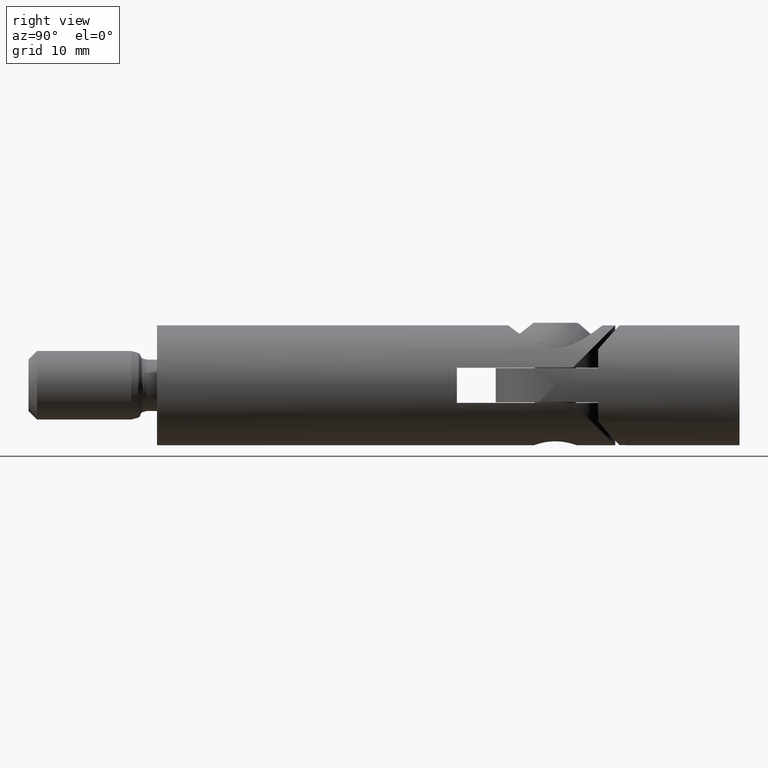
[diagram: clean part render]
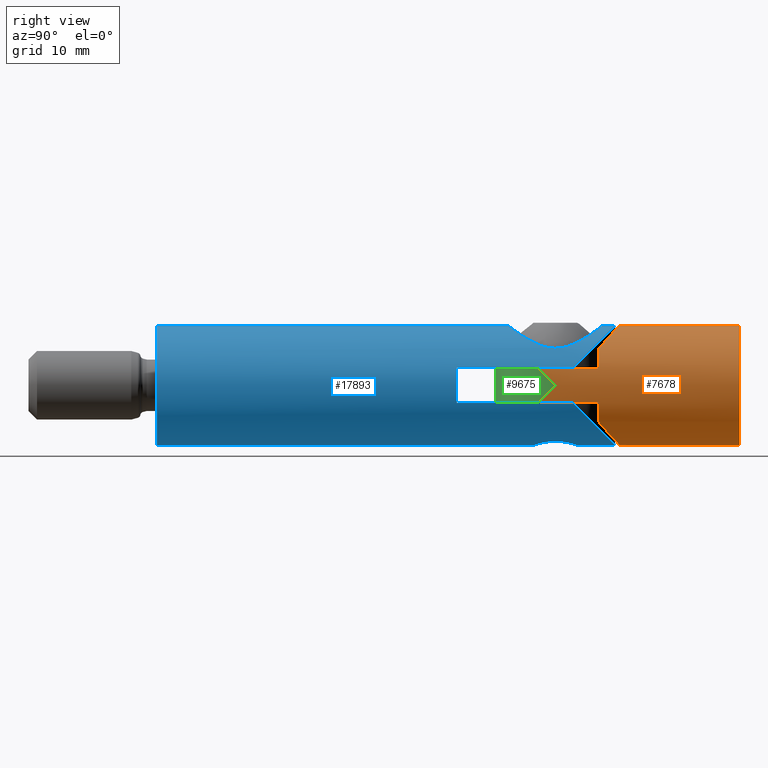
[diagram: same view with three faces highlighted in distinct colors, each labeled with its STEP entity id]
A machine part, right view with three faces highlighted in distinct colors.
Their STEP definitions:

[orange] entity #7678 — the highlighted cylindrical surface (bore or boss wall) has radius 7 mm, axis along (-0, -1, -0).
#22 = CARTESIAN_POINT ( 'NONE',  ( 7.000000000000000000, 7.000000000000000000, 0.000000000000000000 ) ) ;
#253 = AXIS2_PLACEMENT_3D ( 'NONE', #15534, #2525, #13931 ) ;
#283 = EDGE_LOOP ( 'NONE', ( #9877 ) ) ;
#326 = LINE ( 'NONE', #14400, #12409 ) ;
#373 = ORIENTED_EDGE ( 'NONE', *, *, #15923, .F. ) ;
#419 = CARTESIAN_POINT ( 'NONE',  ( -6.708203932499366751, 4.999999999999994671, -2.000000000000000000 ) ) ;
#493 = ORIENTED_EDGE ( 'NONE', *, *, #18924, .F. ) ;
#647 = ORIENTED_EDGE ( 'NONE', *, *, #13480, .F. ) ;
#702 = ORIENTED_EDGE ( 'NONE', *, *, #2052, .F. ) ;
#987 =( BOUNDED_CURVE ( )  B_SPLINE_CURVE ( 3, ( #15938, #18853, #16119, #22 ),
 .UNSPECIFIED., .F., .F. ) 
 B_SPLINE_CURVE_WITH_KNOTS ( ( 4, 4 ),
 ( 1.281044625358848776, 1.570796326794896558 ),
 .UNSPECIFIED. ) 
 CURVE ( )  GEOMETRIC_REPRESENTATION_ITEM ( )  RATIONAL_B_SPLINE_CURVE ( ( 1.000000000000000000, 0.9930158912520659076, 0.9930158912520659076, 1.000000000000000000 ) ) 
 REPRESENTATION_ITEM ( '' )  );
#1037 = EDGE_CURVE ( 'NONE', #11299, #14825, #3824, .T. ) ;
#1078 = ORIENTED_EDGE ( 'NONE', *, *, #17676, .F. ) ;
#1079 = CARTESIAN_POINT ( 'NONE',  ( 0.000000000000000000, 28.50000000000000000, 0.000000000000000000 ) ) ;
#1106 = CARTESIAN_POINT ( 'NONE',  ( -6.902050554587900066, 5.650181336297994683, 1.349818663702006205 ) ) ;
#1224 = CARTESIAN_POINT ( 'NONE',  ( 3.524545003834539170, 13.62551116651950167, 6.053919697269575018 ) ) ;
#1431 = CYLINDRICAL_SURFACE ( 'NONE', #1875, 7.000000000000000888 ) ;
#1580 = CARTESIAN_POINT ( 'NONE',  ( 0.000000000000000000, 12.00000000000002132, 0.000000000000000000 ) ) ;
#1831 =( BOUNDED_CURVE ( )  B_SPLINE_CURVE ( 3, ( #2173, #7916, #3634, #10694 ),
 .UNSPECIFIED., .F., .F. ) 
 B_SPLINE_CURVE_WITH_KNOTS ( ( 4, 4 ),
 ( 4.712388980384689674, 5.002140681820737456 ),
 .UNSPECIFIED. ) 
 CURVE ( )  GEOMETRIC_REPRESENTATION_ITEM ( )  RATIONAL_B_SPLINE_CURVE ( ( 1.000000000000000000, 0.9930158912520659076, 0.9930158912520659076, 1.000000000000000000 ) ) 
 REPRESENTATION_ITEM ( '' )  );
#1875 = AXIS2_PLACEMENT_3D ( 'NONE', #1079, #5342, #2466 ) ;
#2052 = EDGE_CURVE ( 'NONE', #6857, #18804, #6511, .T. ) ;
#2173 = CARTESIAN_POINT ( 'NONE',  ( -7.000000000000000000, 7.000000000000000000, 0.000000000000000000 ) ) ;
#2289 = DIRECTION ( 'NONE',  ( -0.000000000000000000, -1.000000000000000000, -0.000000000000000000 ) ) ;
#2466 = DIRECTION ( 'NONE',  ( 0.000000000000000000, 0.000000000000000000, -1.000000000000000000 ) ) ;
#2478 = CARTESIAN_POINT ( 'NONE',  ( 5.295299452756755620, 12.32967523120923481, 4.604327404148115477 ) ) ;
#2525 = DIRECTION ( 'NONE',  ( -1.230448640448439967E-15, 1.000000000000000000, 0.000000000000000000 ) ) ;
#2584 = CARTESIAN_POINT ( 'NONE',  ( -2.281761982262518362, 14.16768436919888607, -6.642925010495680738 ) ) ;
#2663 = CARTESIAN_POINT ( 'NONE',  ( 2.283189748070490133, 14.14933601639830485, 6.623027506322753943 ) ) ;
#2722 = CARTESIAN_POINT ( 'NONE',  ( 3.752786704336832813, 13.49857862728381797, 5.914853299431412914 ) ) ;
#2768 = DIRECTION ( 'NONE',  ( 0.000000000000000000, 1.000000000000000000, 0.000000000000000000 ) ) ;
#2842 = CARTESIAN_POINT ( 'NONE',  ( 5.295299452756753844, 12.32967523120923481, -4.604327404148115477 ) ) ;
#3002 = VECTOR ( 'NONE', #2289, 1000.000000000000000 ) ;
#3161 = ORIENTED_EDGE ( 'NONE', *, *, #18053, .F. ) ;
#3196 = DIRECTION ( 'NONE',  ( 2.460897280896876779E-15, 1.000000000000000000, -0.000000000000000000 ) ) ;
#3241 =( BOUNDED_CURVE ( )  B_SPLINE_CURVE ( 3, ( #8660, #18861, #4354, #17460 ),
 .UNSPECIFIED., .F., .F. ) 
 B_SPLINE_CURVE_WITH_KNOTS ( ( 4, 4 ),
 ( 4.712388980384689674, 5.002140681820737456 ),
 .UNSPECIFIED. ) 
 CURVE ( )  GEOMETRIC_REPRESENTATION_ITEM ( )  RATIONAL_B_SPLINE_CURVE ( ( 1.000000000000000000, 0.9930158912520659076, 0.9930158912520659076, 1.000000000000000000 ) ) 
 REPRESENTATION_ITEM ( '' )  );
#3511 = CARTESIAN_POINT ( 'NONE',  ( 6.708203932499368527, 12.00000000000000178, -2.000000000000000000 ) ) ;
#3634 = CARTESIAN_POINT ( 'NONE',  ( -6.902050554587899178, 5.650181336297996459, -1.349818663702003985 ) ) ;
#3671 = ORIENTED_EDGE ( 'NONE', *, *, #17442, .F. ) ;
#3795 = AXIS2_PLACEMENT_3D ( 'NONE', #13381, #4551, #16209 ) ;
#3824 = LINE ( 'NONE', #11087, #15900 ) ;
#3994 = CARTESIAN_POINT ( 'NONE',  ( -6.708203932499368527, 28.50000000000000000, 2.000000000000000000 ) ) ;
#4004 = CARTESIAN_POINT ( 'NONE',  ( -2.281761982262519250, 14.16768436919888430, 6.642925010495681626 ) ) ;
#4129 = CARTESIAN_POINT ( 'NONE',  ( -4.954200206329015366, 12.65149546179816831, 4.971094034197842682 ) ) ;
#4153 = VERTEX_POINT ( 'NONE', #3511 ) ;
#4177 = EDGE_CURVE ( 'NONE', #10074, #11299, #1831, .T. ) ;
#4187 = CARTESIAN_POINT ( 'NONE',  ( 5.590169943749471848, 12.00000000000000711, -4.213074886588183965 ) ) ;
#4201 = CARTESIAN_POINT ( 'NONE',  ( 1.178839073344445376, 14.42863304129473612, 6.923678008414044349 ) ) ;
#4354 = CARTESIAN_POINT ( 'NONE',  ( 6.902050554587899178, 5.650181336297996459, 1.349818663702003985 ) ) ;
#4406 = ORIENTED_EDGE ( 'NONE', *, *, #15896, .T. ) ;
#4551 = DIRECTION ( 'NONE',  ( -2.460897280896876779E-15, -1.000000000000000000, -0.000000000000000000 ) ) ;
#5090 = CARTESIAN_POINT ( 'NONE',  ( -6.708203932499366751, 4.999999999999994671, 2.000000000000000000 ) ) ;
#5342 = DIRECTION ( 'NONE',  ( -0.000000000000000000, -1.000000000000000000, -0.000000000000000000 ) ) ;
#5394 = CARTESIAN_POINT ( 'NONE',  ( 6.708203932499366751, 4.999999999999994671, -2.000000000000000000 ) ) ;
#5434 = DIRECTION ( 'NONE',  ( 0.000000000000000000, 1.000000000000000000, 0.000000000000000000 ) ) ;
#5463 = CARTESIAN_POINT ( 'NONE',  ( -3.761837097061687896, 13.51037000091867490, 5.928347600476352675 ) ) ;
#5520 = CARTESIAN_POINT ( 'NONE',  ( 4.960399619251063541, 12.64594433222658232, -4.964783192321641891 ) ) ;
#5596 = VERTEX_POINT ( 'NONE', #5090 ) ;
#5597 = CARTESIAN_POINT ( 'NONE',  ( 0.6045416079581605873, 14.49914639711959730, 6.999085425348580358 ) ) ;
#5645 = CARTESIAN_POINT ( 'NONE',  ( 4.185211454480367799, 13.22887929763642312, -5.617197048646974444 ) ) ;
#5657 = CARTESIAN_POINT ( 'NONE',  ( -1.159885179606266137, 14.43214661657628106, 6.927449516878300351 ) ) ;
#5731 = CARTESIAN_POINT ( 'NONE',  ( -6.708203932499366751, 4.999999999999994671, 2.000000000000000000 ) ) ;
#5774 = CARTESIAN_POINT ( 'NONE',  ( -5.590169943749473624, 12.00000000000000355, -4.213074886588180412 ) ) ;
#6399 = VERTEX_POINT ( 'NONE', #9830 ) ;
#6511 = B_SPLINE_CURVE_WITH_KNOTS ( 'NONE', 3,
 ( #6988, #2478, #12690, #9966, #7046, #2722, #1224, #11355, #8325, #2663, #18521, #4201, #5597, #14373, #5657, #4004, #6807, #5463, #12821, #4129, #16989, #12644 ),
 .UNSPECIFIED., .F., .F.,
 ( 4, 2, 2, 2, 2, 2, 2, 2, 2, 2, 4 ),
 ( 2.124593680485184732E-18, 0.001751070429422219759, 0.002626605644133327578, 0.003502140858844435614, 0.004377676073555543217, 0.005253211288266650819, 0.007004281717688866024, 0.008755352147111081229, 0.01050642257653329643, 0.01225749300595551337, 0.01400856343537772684 ),
 .UNSPECIFIED. ) ;
#6588 = CARTESIAN_POINT ( 'NONE',  ( -6.708203932499368527, 12.00000000000000178, -2.000000000000000000 ) ) ;
#6721 = CARTESIAN_POINT ( 'NONE',  ( -5.590169943749473624, 12.00000000000000000, 4.213074886588181300 ) ) ;
#6722 = CIRCLE ( 'NONE', #16519, 7.000000000000000888 ) ;
#6807 = CARTESIAN_POINT ( 'NONE',  ( -2.799444746878172463, 13.97849876426639426, 6.438931023553478461 ) ) ;
#6857 = VERTEX_POINT ( 'NONE', #17329 ) ;
#6860 = ORIENTED_EDGE ( 'NONE', *, *, #7725, .T. ) ;
#6974 = CARTESIAN_POINT ( 'NONE',  ( 2.801770636150686222, 13.96247385657338924, -6.420866769962272791 ) ) ;
#6988 = CARTESIAN_POINT ( 'NONE',  ( 5.590169943749471848, 12.00000000000000533, 4.213074886588183077 ) ) ;
#7033 = CARTESIAN_POINT ( 'NONE',  ( -0.5831730471351823653, 14.50083838235963540, -7.000898266949366011 ) ) ;
#7046 = CARTESIAN_POINT ( 'NONE',  ( 4.185211454480367799, 13.22887929763642312, 5.617197048646974444 ) ) ;
#7092 = DIRECTION ( 'NONE',  ( 0.000000000000000000, 0.000000000000000000, 1.000000000000000000 ) ) ;
#7095 = CARTESIAN_POINT ( 'NONE',  ( -2.799444746878171575, 13.97849876426639071, -6.438931023553478461 ) ) ;
#7154 = CARTESIAN_POINT ( 'NONE',  ( 2.283189748070490133, 14.14933601639830485, -6.623027506322753943 ) ) ;
#7220 = CARTESIAN_POINT ( 'NONE',  ( 0.6045416079581608093, 14.49914639711959552, -6.999085425348581246 ) ) ;
#7330 = CIRCLE ( 'NONE', #253, 7.000000000000000888 ) ;
#7352 = DIRECTION ( 'NONE',  ( 0.000000000000000000, 1.000000000000000000, 0.000000000000000000 ) ) ;
#7462 = DIRECTION ( 'NONE',  ( -1.000000000000000000, 2.478176394252581338E-15, 0.000000000000000000 ) ) ;
#7647 = VERTEX_POINT ( 'NONE', #9594 ) ;
#7678 = ADVANCED_FACE ( 'NONE', ( #10333, #15383 ), #1431, .T. ) ;
#7725 = EDGE_CURVE ( 'NONE', #13664, #12255, #11136, .T. ) ;
#7808 = AXIS2_PLACEMENT_3D ( 'NONE', #1580, #3196, #7462 ) ;
#7916 = CARTESIAN_POINT ( 'NONE',  ( -7.000000000000000888, 6.321536822690148938, -0.6784631773098522833 ) ) ;
#8325 = CARTESIAN_POINT ( 'NONE',  ( 2.801770636150687999, 13.96247385657338924, 6.420866769962271903 ) ) ;
#8364 = DIRECTION ( 'NONE',  ( 1.230448640448439967E-15, -1.000000000000000000, 0.000000000000000000 ) ) ;
#8433 = CIRCLE ( 'NONE', #12185, 7.000000000000000888 ) ;
#8660 = CARTESIAN_POINT ( 'NONE',  ( 7.000000000000000000, 7.000000000000000000, 0.000000000000000000 ) ) ;
#9138 = EDGE_CURVE ( 'NONE', #4153, #13454, #326, .T. ) ;
#9594 = CARTESIAN_POINT ( 'NONE',  ( -6.708203932499368527, 12.00000000000000178, 2.000000000000000000 ) ) ;
#9625 = ORIENTED_EDGE ( 'NONE', *, *, #11130, .F. ) ;
#9830 = CARTESIAN_POINT ( 'NONE',  ( 6.708203932499368527, 12.00000000000000178, 2.000000000000000000 ) ) ;
#9877 = ORIENTED_EDGE ( 'NONE', *, *, #10556, .F. ) ;
#9945 = CARTESIAN_POINT ( 'NONE',  ( 6.708203932499368527, 28.50000000000000000, 2.000000000000000000 ) ) ;
#9966 = CARTESIAN_POINT ( 'NONE',  ( 4.387857517918072325, 13.08726287823737522, 5.459886952566534113 ) ) ;
#10074 = VERTEX_POINT ( 'NONE', #17448 ) ;
#10333 = FACE_OUTER_BOUND ( 'NONE', #283, .T. ) ;
#10556 = EDGE_CURVE ( 'NONE', #11341, #11341, #6722, .T. ) ;
#10694 = CARTESIAN_POINT ( 'NONE',  ( -6.708203932499366751, 4.999999999999994671, -2.000000000000000000 ) ) ;
#11087 = CARTESIAN_POINT ( 'NONE',  ( -6.708203932499368527, 28.50000000000000000, -2.000000000000000000 ) ) ;
#11102 = CARTESIAN_POINT ( 'NONE',  ( 6.708203932499366751, 4.999999999999994671, 2.000000000000000000 ) ) ;
#11130 = EDGE_CURVE ( 'NONE', #13454, #14798, #987, .T. ) ;
#11136 = B_SPLINE_CURVE_WITH_KNOTS ( 'NONE', 3,
 ( #4187, #2842, #5520, #14356, #5645, #15844, #11288, #15707, #6974, #7154, #17345, #17219, #7220, #7033, #12996, #2584, #7095, #17277, #15906, #11410, #12808, #5774 ),
 .UNSPECIFIED., .F., .F.,
 ( 4, 2, 2, 2, 2, 2, 2, 2, 2, 2, 4 ),
 ( 1.226634733346699349E-18, 0.001751070429422216940, 0.002626605644133325843, 0.003502140858844433879, 0.004377676073555542349, 0.005253211288266650819, 0.007004281717688866024, 0.008755352147111081229, 0.01050642257653329643, 0.01225749300595550990, 0.01400856343537772337 ),
 .UNSPECIFIED. ) ;
#11230 = DIRECTION ( 'NONE',  ( 1.000000000000000000, 1.239088197126290669E-15, 0.000000000000000000 ) ) ;
#11288 = CARTESIAN_POINT ( 'NONE',  ( 3.524545003834536061, 13.62551116651949634, -6.053919697269573241 ) ) ;
#11299 = VERTEX_POINT ( 'NONE', #419 ) ;
#11341 = VERTEX_POINT ( 'NONE', #12703 ) ;
#11355 = CARTESIAN_POINT ( 'NONE',  ( 3.049549086078949145, 13.85711791303931051, 6.306553064601819081 ) ) ;
#11410 = CARTESIAN_POINT ( 'NONE',  ( -4.954200206329017142, 12.65149546179816831, -4.971094034197841793 ) ) ;
#11840 = CARTESIAN_POINT ( 'NONE',  ( 5.590169943749471848, 12.00000000000000711, -4.213074886588183965 ) ) ;
#11955 = EDGE_LOOP ( 'NONE', ( #17754, #493, #373, #3671, #702, #1078, #647, #3161, #9625, #12961, #13026, #6860, #4406, #11987 ) ) ;
#11987 = ORIENTED_EDGE ( 'NONE', *, *, #1037, .F. ) ;
#12185 = AXIS2_PLACEMENT_3D ( 'NONE', #16908, #8364, #11230 ) ;
#12255 = VERTEX_POINT ( 'NONE', #14027 ) ;
#12409 = VECTOR ( 'NONE', #14154, 1000.000000000000000 ) ;
#12644 = CARTESIAN_POINT ( 'NONE',  ( -5.590169943749473624, 12.00000000000000000, 4.213074886588181300 ) ) ;
#12690 = CARTESIAN_POINT ( 'NONE',  ( 4.960399619251062653, 12.64594433222657699, 4.964783192321639227 ) ) ;
#12703 = CARTESIAN_POINT ( 'NONE',  ( 0.000000000000000000, 28.50000000000000000, 7.000000000000000888 ) ) ;
#12778 = LINE ( 'NONE', #9945, #17352 ) ;
#12808 = CARTESIAN_POINT ( 'NONE',  ( -5.294889353254728981, 12.33013373639126797, -4.604871549688337673 ) ) ;
#12821 = CARTESIAN_POINT ( 'NONE',  ( -4.188007063523119022, 13.24052060929183661, 5.631737957070474643 ) ) ;
#12961 = ORIENTED_EDGE ( 'NONE', *, *, #9138, .F. ) ;
#12996 = CARTESIAN_POINT ( 'NONE',  ( -1.159885179606266581, 14.43214661657628284, -6.927449516878300351 ) ) ;
#13026 = ORIENTED_EDGE ( 'NONE', *, *, #15282, .T. ) ;
#13381 = CARTESIAN_POINT ( 'NONE',  ( 0.000000000000000000, 12.00000000000002132, 0.000000000000000000 ) ) ;
#13405 = VERTEX_POINT ( 'NONE', #11102 ) ;
#13453 = CIRCLE ( 'NONE', #7808, 7.000000000000000888 ) ;
#13454 = VERTEX_POINT ( 'NONE', #5394 ) ;
#13480 = EDGE_CURVE ( 'NONE', #13405, #6399, #12778, .T. ) ;
#13664 = VERTEX_POINT ( 'NONE', #11840 ) ;
#13931 = DIRECTION ( 'NONE',  ( -1.000000000000000000, -1.239088197126290669E-15, 0.000000000000000000 ) ) ;
#14027 = CARTESIAN_POINT ( 'NONE',  ( -5.590169943749473624, 12.00000000000000355, -4.213074886588180412 ) ) ;
#14154 = DIRECTION ( 'NONE',  ( -0.000000000000000000, -1.000000000000000000, -0.000000000000000000 ) ) ;
#14356 = CARTESIAN_POINT ( 'NONE',  ( 4.387857517918072325, 13.08726287823737522, -5.459886952566535001 ) ) ;
#14373 = CARTESIAN_POINT ( 'NONE',  ( -0.5831730471351836975, 14.50083838235963185, 7.000898266949365123 ) ) ;
#14400 = CARTESIAN_POINT ( 'NONE',  ( 6.708203932499368527, 28.50000000000000000, -2.000000000000000000 ) ) ;
#14798 = VERTEX_POINT ( 'NONE', #17882 ) ;
#14825 = VERTEX_POINT ( 'NONE', #6588 ) ;
#15282 = EDGE_CURVE ( 'NONE', #4153, #13664, #13453, .T. ) ;
#15383 = FACE_OUTER_BOUND ( 'NONE', #11955, .T. ) ;
#15534 = CARTESIAN_POINT ( 'NONE',  ( 0.000000000000000000, 12.00000000000000711, 0.000000000000000000 ) ) ;
#15707 = CARTESIAN_POINT ( 'NONE',  ( 3.049549086078947369, 13.85711791303930518, -6.306553064601816416 ) ) ;
#15765 = LINE ( 'NONE', #3994, #3002 ) ;
#15844 = CARTESIAN_POINT ( 'NONE',  ( 3.752786704336831480, 13.49857862728381086, -5.914853299431412026 ) ) ;
#15896 = EDGE_CURVE ( 'NONE', #12255, #14825, #7330, .T. ) ;
#15900 = VECTOR ( 'NONE', #5434, 1000.000000000000000 ) ;
#15906 = CARTESIAN_POINT ( 'NONE',  ( -4.188007063523117246, 13.24052060929184194, -5.631737957070475531 ) ) ;
#15923 = EDGE_CURVE ( 'NONE', #7647, #5596, #15765, .T. ) ;
#15938 = CARTESIAN_POINT ( 'NONE',  ( 6.708203932499366751, 4.999999999999994671, -2.000000000000000000 ) ) ;
#16119 = CARTESIAN_POINT ( 'NONE',  ( 7.000000000000000888, 6.321536822690148050, -0.6784631773098539487 ) ) ;
#16209 = DIRECTION ( 'NONE',  ( 1.000000000000000000, -2.478176394252581338E-15, 0.000000000000000000 ) ) ;
#16433 = CIRCLE ( 'NONE', #3795, 7.000000000000000888 ) ;
#16519 = AXIS2_PLACEMENT_3D ( 'NONE', #18816, #7352, #7092 ) ;
#16784 =( BOUNDED_CURVE ( )  B_SPLINE_CURVE ( 3, ( #5731, #1106, #18779, #17124 ),
 .UNSPECIFIED., .F., .F. ) 
 B_SPLINE_CURVE_WITH_KNOTS ( ( 4, 4 ),
 ( 1.281044625358848776, 1.570796326794896558 ),
 .UNSPECIFIED. ) 
 CURVE ( )  GEOMETRIC_REPRESENTATION_ITEM ( )  RATIONAL_B_SPLINE_CURVE ( ( 1.000000000000000000, 0.9930158912520659076, 0.9930158912520659076, 1.000000000000000000 ) ) 
 REPRESENTATION_ITEM ( '' )  );
#16908 = CARTESIAN_POINT ( 'NONE',  ( 0.000000000000000000, 12.00000000000000711, 0.000000000000000000 ) ) ;
#16989 = CARTESIAN_POINT ( 'NONE',  ( -5.294889353254730757, 12.33013373639127153, 4.604871549688337673 ) ) ;
#17124 = CARTESIAN_POINT ( 'NONE',  ( -7.000000000000000000, 7.000000000000000000, 0.000000000000000000 ) ) ;
#17219 = CARTESIAN_POINT ( 'NONE',  ( 1.178839073344445376, 14.42863304129473612, -6.923678008414045237 ) ) ;
#17277 = CARTESIAN_POINT ( 'NONE',  ( -3.761837097061690116, 13.51037000091867490, -5.928347600476354451 ) ) ;
#17329 = CARTESIAN_POINT ( 'NONE',  ( 5.590169943749471848, 12.00000000000000533, 4.213074886588183077 ) ) ;
#17345 = CARTESIAN_POINT ( 'NONE',  ( 2.009872747510363045, 14.23128440490208213, -6.711345336076451673 ) ) ;
#17352 = VECTOR ( 'NONE', #2768, 1000.000000000000000 ) ;
#17442 = EDGE_CURVE ( 'NONE', #18804, #7647, #8433, .T. ) ;
#17448 = CARTESIAN_POINT ( 'NONE',  ( -7.000000000000000000, 7.000000000000000000, 0.000000000000000000 ) ) ;
#17460 = CARTESIAN_POINT ( 'NONE',  ( 6.708203932499366751, 4.999999999999994671, 2.000000000000000000 ) ) ;
#17676 = EDGE_CURVE ( 'NONE', #6399, #6857, #16433, .T. ) ;
#17754 = ORIENTED_EDGE ( 'NONE', *, *, #4177, .F. ) ;
#17882 = CARTESIAN_POINT ( 'NONE',  ( 7.000000000000000000, 7.000000000000000000, 0.000000000000000000 ) ) ;
#18053 = EDGE_CURVE ( 'NONE', #14798, #13405, #3241, .T. ) ;
#18521 = CARTESIAN_POINT ( 'NONE',  ( 2.009872747510362601, 14.23128440490208568, 6.711345336076452561 ) ) ;
#18779 = CARTESIAN_POINT ( 'NONE',  ( -7.000000000000000888, 6.321536822690148050, 0.6784631773098539487 ) ) ;
#18804 = VERTEX_POINT ( 'NONE', #6721 ) ;
#18816 = CARTESIAN_POINT ( 'NONE',  ( 0.000000000000000000, 28.50000000000000000, 0.000000000000000000 ) ) ;
#18853 = CARTESIAN_POINT ( 'NONE',  ( 6.902050554587900066, 5.650181336297994683, -1.349818663702006205 ) ) ;
#18861 = CARTESIAN_POINT ( 'NONE',  ( 7.000000000000000888, 6.321536822690148938, 0.6784631773098522833 ) ) ;
#18924 = EDGE_CURVE ( 'NONE', #5596, #10074, #16784, .T. ) ;

[blue] entity #17893 — the highlighted cylindrical surface (bore or boss wall) has radius 7 mm, axis along (-0, -1, -0).
#172 = CARTESIAN_POINT ( 'NONE',  ( -1.507612398248180829, 41.19739290302963752, 6.845820983088490408 ) ) ;
#178 = ORIENTED_EDGE ( 'NONE', *, *, #6211, .F. ) ;
#247 = CARTESIAN_POINT ( 'NONE',  ( -5.489542698396462583, 46.88781042606179028, 4.343491354249609415 ) ) ;
#266 = CARTESIAN_POINT ( 'NONE',  ( 0.000000000000000000, 35.00000000000000000, 0.000000000000000000 ) ) ;
#317 = CARTESIAN_POINT ( 'NONE',  ( 2.512140862901092397, 41.59347924742006342, 6.543318595732870335 ) ) ;
#381 = CARTESIAN_POINT ( 'NONE',  ( 0.7433123821315043012, 41.04716031011734856, 6.962996468904618652 ) ) ;
#417 = EDGE_LOOP ( 'NONE', ( #10521 ) ) ;
#809 = CARTESIAN_POINT ( 'NONE',  ( 1.882384336655252621, 44.84682305767906030, -6.743197514559793326 ) ) ;
#977 = CARTESIAN_POINT ( 'NONE',  ( 2.371425688026324696, 45.69159337089283213, -6.586413507820591207 ) ) ;
#1092 = CARTESIAN_POINT ( 'NONE',  ( -2.245012125348697207, 47.61198059841553487, -6.630560423196206976 ) ) ;
#1277 = CARTESIAN_POINT ( 'NONE',  ( 0.7734222858281162294, 51.95816531642181246, 6.967008842545076241 ) ) ;
#1377 = EDGE_CURVE ( 'NONE', #10585, #17427, #9511, .T. ) ;
#1398 = EDGE_LOOP ( 'NONE', ( #10835 ) ) ;
#1407 = CARTESIAN_POINT ( 'NONE',  ( 5.460146179290147117, 47.25803871236825415, 4.381875985696098930 ) ) ;
#1661 = ORIENTED_EDGE ( 'NONE', *, *, #6247, .F. ) ;
#1666 = CARTESIAN_POINT ( 'NONE',  ( 5.499999999999999112, 46.50000000000000000, 4.330127018922195425 ) ) ;
#1737 = CARTESIAN_POINT ( 'NONE',  ( 4.921647378015672203, 44.02002171828848276, 4.981664561122260970 ) ) ;
#1802 = CARTESIAN_POINT ( 'NONE',  ( -5.200760692656373863, 44.67632938158256195, 4.689524201800258751 ) ) ;
#1872 = CARTESIAN_POINT ( 'NONE',  ( -1.858621316442176985, 41.31055447445955053, 6.758049242145932389 ) ) ;
#1906 = LINE ( 'NONE', #9985, #10090 ) ;
#2036 = CARTESIAN_POINT ( 'NONE',  ( -6.693093455196927444, 48.55000000000001137, -2.050000000000005151 ) ) ;
#2074 = AXIS2_PLACEMENT_3D ( 'NONE', #17018, #12852, #15692 ) ;
#2298 = CARTESIAN_POINT ( 'NONE',  ( -1.986840884282949915, 44.97400988416038814, -6.712775771155986781 ) ) ;
#2399 = LINE ( 'NONE', #17626, #17902 ) ;
#2465 = DIRECTION ( 'NONE',  ( -0.000000000000000000, -1.000000000000000000, -0.000000000000000000 ) ) ;
#2480 = CARTESIAN_POINT ( 'NONE',  ( -0.1632249540420172562, 43.99994005808109421, -7.000021407826922726 ) ) ;
#2535 = CARTESIAN_POINT ( 'NONE',  ( -6.776263578034402713E-17, 49.00000000000001421, -7.000000000000002665 ) ) ;
#2724 = VERTEX_POINT ( 'NONE', #16891 ) ;
#2777 = CARTESIAN_POINT ( 'NONE',  ( 4.757752198958344891, 49.28040329809339681, 5.140715106073974638 ) ) ;
#2796 = CARTESIAN_POINT ( 'NONE',  ( -2.483307031860889857, 46.16828204702037652, -6.544797415927020801 ) ) ;
#2828 = CARTESIAN_POINT ( 'NONE',  ( 6.693093455196927444, 48.55000000000001137, -2.050000000000005151 ) ) ;
#2841 = CARTESIAN_POINT ( 'NONE',  ( -4.370847955483821323, 49.85609258614647388, 5.473526347815975690 ) ) ;
#2858 = CARTESIAN_POINT ( 'NONE',  ( -1.985233745358465418, 48.02823329424884946, -6.713264087510800060 ) ) ;
#2902 = CARTESIAN_POINT ( 'NONE',  ( 2.839039129907985348, 51.22366020832642874, 6.406553849075965701 ) ) ;
#2958 = CARTESIAN_POINT ( 'NONE',  ( 5.191856280399868240, 48.32397811758085027, 4.695878412727267914 ) ) ;
#3026 = CARTESIAN_POINT ( 'NONE',  ( 5.346599550986332439, 47.80319913618723859, 4.518559682542871769 ) ) ;
#3085 = CARTESIAN_POINT ( 'NONE',  ( 1.837696019074737785, 41.30310949201044934, 6.763781730792167934 ) ) ;
#3146 = CARTESIAN_POINT ( 'NONE',  ( 5.127930791209768024, 44.50374047318864257, 4.765944237906090564 ) ) ;
#3210 = CARTESIAN_POINT ( 'NONE',  ( -3.417351448110579337, 42.17632786499568454, 6.117612455646137093 ) ) ;
#3280 = CARTESIAN_POINT ( 'NONE',  ( -0.01180415937146371032, 40.99029540443986264, 7.007632938738519890 ) ) ;
#3345 = CARTESIAN_POINT ( 'NONE',  ( -2.531940302955372424, 41.60366500709405813, 6.535669901354623335 ) ) ;
#3771 = CARTESIAN_POINT ( 'NONE',  ( 2.244726622244043845, 45.38717321060087073, -6.630664000024547811 ) ) ;
#3887 = CARTESIAN_POINT ( 'NONE',  ( 0.8112206507781161147, 48.87038489317941981, -6.954508816250384307 ) ) ;
#3947 = CARTESIAN_POINT ( 'NONE',  ( -0.8096612234407211117, 44.12909319945075737, -6.954688116883211535 ) ) ;
#4007 = CARTESIAN_POINT ( 'NONE',  ( 0.6516790683854605248, 48.91912802892356638, -6.971461250661977971 ) ) ;
#4110 = CARTESIAN_POINT ( 'NONE',  ( 0.000000000000000000, 0.000000000000000000, 0.000000000000000000 ) ) ;
#4132 = CARTESIAN_POINT ( 'NONE',  ( -2.419052384811557932, 47.15227520912352333, -6.568818882573226325 ) ) ;
#4190 = DIRECTION ( 'NONE',  ( 3.552713678800500929E-15, 0.000000000000000000, -1.000000000000000000 ) ) ;
#4238 = EDGE_CURVE ( 'NONE', #15045, #15045, #18231, .T. ) ;
#4246 = CARTESIAN_POINT ( 'NONE',  ( -2.819522854958953495, 51.22571372053042893, 6.409290606288711167 ) ) ;
#4306 = CARTESIAN_POINT ( 'NONE',  ( -4.921190913421407132, 48.98089197755989233, 4.982119386686559181 ) ) ;
#4322 = CARTESIAN_POINT ( 'NONE',  ( -1.653218507118571656, 48.38232278368797523, -6.803006522398717060 ) ) ;
#4370 = CARTESIAN_POINT ( 'NONE',  ( -0.7438184968026249066, 51.95274416243641014, 6.962921694991211830 ) ) ;
#4393 = CARTESIAN_POINT ( 'NONE',  ( -6.693093455196934549, 48.54999999999999005, 2.049999999999986944 ) ) ;
#4439 = CARTESIAN_POINT ( 'NONE',  ( -2.342226265255104245, 51.47969279597070624, 6.598873516335768130 ) ) ;
#4500 = CARTESIAN_POINT ( 'NONE',  ( 0.000000000000000000, 35.00000000000000000, 0.000000000000000000 ) ) ;
#4556 = CARTESIAN_POINT ( 'NONE',  ( 4.371296540607602310, 43.14432335675825669, 5.473219336192554074 ) ) ;
#4695 = CARTESIAN_POINT ( 'NONE',  ( 5.345748411888116891, 45.19344035577858421, 4.519565622791816395 ) ) ;
#4754 = CARTESIAN_POINT ( 'NONE',  ( 5.298743156595265624, 45.01473864851867290, 4.574941212175438920 ) ) ;
#4971 = VECTOR ( 'NONE', #12439, 1000.000000000000000 ) ;
#5232 = CARTESIAN_POINT ( 'NONE',  ( 0.3306081439320678883, 44.01644412961704234, -6.994077360543435873 ) ) ;
#5359 = CARTESIAN_POINT ( 'NONE',  ( 1.527934325100933188, 44.51459062911761322, -6.832598031578645426 ) ) ;
#5417 = CARTESIAN_POINT ( 'NONE',  ( 1.527263770372947693, 48.48595630701035475, -6.832755276966913094 ) ) ;
#5600 = CARTESIAN_POINT ( 'NONE',  ( -2.167113377267011032, 47.75708775963775565, -6.656777549418535500 ) ) ;
#5644 = CARTESIAN_POINT ( 'NONE',  ( 0.3887538263672195016, 51.99929887298732467, 6.999449114839620734 ) ) ;
#5703 = CARTESIAN_POINT ( 'NONE',  ( -2.970016149623479595, 51.13247884822471434, 6.340752203514503194 ) ) ;
#5733 = AXIS2_PLACEMENT_3D ( 'NONE', #266, #9093, #14962 ) ;
#5764 = ORIENTED_EDGE ( 'NONE', *, *, #12489, .F. ) ;
#5831 = CARTESIAN_POINT ( 'NONE',  ( 5.499999999999999112, 46.88494644625367158, 4.330127018922194537 ) ) ;
#5954 = CARTESIAN_POINT ( 'NONE',  ( -5.189349118811451333, 48.33114402945376042, 4.698657618251711021 ) ) ;
#6013 = CARTESIAN_POINT ( 'NONE',  ( 2.824677456659352881, 41.76765598770789012, 6.412965234982163309 ) ) ;
#6078 = CARTESIAN_POINT ( 'NONE',  ( -4.759074894996294880, 43.72197025037506535, 5.139450860037241497 ) ) ;
#6136 = CARTESIAN_POINT ( 'NONE',  ( -3.685013345499414061, 42.40263109873730230, 5.958603154810997005 ) ) ;
#6197 = ORIENTED_EDGE ( 'NONE', *, *, #1377, .F. ) ;
#6209 = CARTESIAN_POINT ( 'NONE',  ( -5.345164552139769043, 47.80900867407076760, 4.520259293446937221 ) ) ;
#6211 = EDGE_CURVE ( 'NONE', #12627, #2724, #10365, .T. ) ;
#6247 = EDGE_CURVE ( 'NONE', #10217, #8206, #2399, .T. ) ;
#6402 = EDGE_CURVE ( 'NONE', #10687, #10687, #10830, .T. ) ;
#6697 = CARTESIAN_POINT ( 'NONE',  ( -0.6532263928453271307, 44.08119036069261654, -6.971349579871465529 ) ) ;
#6809 = CARTESIAN_POINT ( 'NONE',  ( 0.1650559939057997527, 44.00006027718961121, -6.999978472433541654 ) ) ;
#6865 = CARTESIAN_POINT ( 'NONE',  ( -1.111657470481551169, 44.25478998266158470, -6.912847153538305811 ) ) ;
#6990 = CARTESIAN_POINT ( 'NONE',  ( -1.113019944903974379, 48.74457664985544625, -6.912639223804453614 ) ) ;
#7000 = CARTESIAN_POINT ( 'NONE',  ( 0.000000000000000000, 48.99999999999999289, -7.000000000000000000 ) ) ;
#7059 = CARTESIAN_POINT ( 'NONE',  ( 5.499999999999999112, 46.50000000000000000, 4.330127018922195425 ) ) ;
#7235 = CARTESIAN_POINT ( 'NONE',  ( -2.418762598286849475, 45.84697771251865106, -6.568924913800088028 ) ) ;
#7354 = CARTESIAN_POINT ( 'NONE',  ( 3.684188353976016295, 50.59797909670633231, 5.959052250712310261 ) ) ;
#7412 = CARTESIAN_POINT ( 'NONE',  ( -4.926129143129008625, 44.02877804073092705, 4.977228213249314415 ) ) ;
#7475 = CARTESIAN_POINT ( 'NONE',  ( -0.7687818445131568978, 41.05066792738165304, 6.960248919790874567 ) ) ;
#7558 = EDGE_LOOP ( 'NONE', ( #178, #9176, #6197, #15741, #5764, #14695, #1661, #11441 ) ) ;
#7627 = CARTESIAN_POINT ( 'NONE',  ( -5.460857275320576854, 45.74641773878838080, 4.380993482865646271 ) ) ;
#7795 = CIRCLE ( 'NONE', #5733, 7.000000000000000000 ) ;
#7929 = EDGE_CURVE ( 'NONE', #17427, #12627, #12557, .T. ) ;
#8159 = CARTESIAN_POINT ( 'NONE',  ( 2.418883682418213166, 47.15282833060791035, -6.568881003250924167 ) ) ;
#8206 = VERTEX_POINT ( 'NONE', #4393 ) ;
#8211 = CARTESIAN_POINT ( 'NONE',  ( -2.244966133037157530, 45.38775853214296774, -6.630580112121109870 ) ) ;
#8327 = CARTESIAN_POINT ( 'NONE',  ( -1.257783237209305183, 44.33335841688754186, -6.887445618350332310 ) ) ;
#8444 = CARTESIAN_POINT ( 'NONE',  ( -0.1666460684991319940, 49.00000000000002132, -7.000000000000001776 ) ) ;
#8568 = CARTESIAN_POINT ( 'NONE',  ( -2.483837428618577370, 46.82837328925034370, -6.544596823388476814 ) ) ;
#8614 = CARTESIAN_POINT ( 'NONE',  ( -3.672934557128459954, 50.60822537368204621, 5.966091940640723124 ) ) ;
#8629 = CARTESIAN_POINT ( 'NONE',  ( -1.882429331914506454, 48.15309718547281648, -6.743180924936448051 ) ) ;
#8780 = EDGE_CURVE ( 'NONE', #15949, #15949, #11502, .T. ) ;
#8813 = AXIS2_PLACEMENT_3D ( 'NONE', #4110, #2465, #14053 ) ;
#8872 = CARTESIAN_POINT ( 'NONE',  ( 5.421368607926241978, 45.55507322817891236, 4.428573350292142941 ) ) ;
#8916 = CARTESIAN_POINT ( 'NONE',  ( 6.693093455196948760, -2.444875898954748995E-15, -2.049999999999947420 ) ) ;
#8944 = CARTESIAN_POINT ( 'NONE',  ( -4.379537889029710307, 43.15546848952827474, 5.466479385991934059 ) ) ;
#9010 = CARTESIAN_POINT ( 'NONE',  ( -2.841886257790344761, 41.77812387406247296, 6.405244380596468723 ) ) ;
#9072 = EDGE_LOOP ( 'NONE', ( #11836 ) ) ;
#9079 = CARTESIAN_POINT ( 'NONE',  ( 1.485627077226389314, 41.19108608159104534, 6.850713278850228072 ) ) ;
#9093 = DIRECTION ( 'NONE',  ( 0.000000000000000000, 1.000000000000000000, 0.000000000000000000 ) ) ;
#9132 = VERTEX_POINT ( 'NONE', #10378 ) ;
#9164 = CARTESIAN_POINT ( 'NONE',  ( 6.693093455196934549, 48.54999999999999005, 2.049999999999986944 ) ) ;
#9170 = CIRCLE ( 'NONE', #16341, 7.000000000000000000 ) ;
#9176 = ORIENTED_EDGE ( 'NONE', *, *, #7929, .F. ) ;
#9511 = LINE ( 'NONE', #8916, #4971 ) ;
#9547 = CARTESIAN_POINT ( 'NONE',  ( -1.883607065510684242, 44.84811600759263683, -6.742868597826157995 ) ) ;
#9612 = CARTESIAN_POINT ( 'NONE',  ( 1.257914691869151058, 44.33341644523250125, -6.887425483512237712 ) ) ;
#9724 = CARTESIAN_POINT ( 'NONE',  ( 1.111790738810968238, 44.25490115122598667, -6.912812585797708742 ) ) ;
#9761 = CARTESIAN_POINT ( 'NONE',  ( 6.693093455196927444, 48.55000000000001137, -2.050000000000005151 ) ) ;
#9907 = CARTESIAN_POINT ( 'NONE',  ( -0.6510019330995342468, 48.91928802501296758, -6.971517128683277775 ) ) ;
#9939 = CARTESIAN_POINT ( 'NONE',  ( -6.693093455196927444, 48.55000000000001137, -2.050000000000005151 ) ) ;
#9985 = CARTESIAN_POINT ( 'NONE',  ( 6.693093455196934549, 1.778091562876220123E-16, 2.049999999999991829 ) ) ;
#10030 = CARTESIAN_POINT ( 'NONE',  ( -2.500016827053381796, 46.33549349826466823, -6.538341981326382779 ) ) ;
#10090 = VECTOR ( 'NONE', #18915, 1000.000000000000000 ) ;
#10172 = CARTESIAN_POINT ( 'NONE',  ( -6.693093455196948760, -2.444875898954748995E-15, -2.049999999999947420 ) ) ;
#10216 = CARTESIAN_POINT ( 'NONE',  ( 4.376857120035169579, 49.84812936391931260, 5.468663414336956130 ) ) ;
#10217 = VERTEX_POINT ( 'NONE', #13071 ) ;
#10343 = CARTESIAN_POINT ( 'NONE',  ( -0.9575191219740827320, 41.08074807532422312, 6.936692089895267088 ) ) ;
#10365 = LINE ( 'NONE', #10172, #13779 ) ;
#10378 = CARTESIAN_POINT ( 'NONE',  ( 6.693093455196935437, 35.00000000000000000, 2.049999999999988720 ) ) ;
#10401 = CARTESIAN_POINT ( 'NONE',  ( 5.499999999999999112, 46.30752677687316066, 4.330127018922195425 ) ) ;
#10456 = CARTESIAN_POINT ( 'NONE',  ( -5.421102529805963854, 47.44653851457583471, 4.428902294110398152 ) ) ;
#10521 = ORIENTED_EDGE ( 'NONE', *, *, #6402, .F. ) ;
#10527 = CARTESIAN_POINT ( 'NONE',  ( -5.499852215200940364, 46.69544901764929534, 4.330314730685420166 ) ) ;
#10585 = VERTEX_POINT ( 'NONE', #17534 ) ;
#10598 = CARTESIAN_POINT ( 'NONE',  ( -5.298022245702344257, 47.98774763234779783, 4.575771844673545807 ) ) ;
#10687 = VERTEX_POINT ( 'NONE', #15733 ) ;
#10830 = CIRCLE ( 'NONE', #8813, 7.000000000000000000 ) ;
#10832 =( BOUNDED_CURVE ( )  B_SPLINE_CURVE ( 3, ( #14762, #15022, #18013, #9164 ),
 .UNSPECIFIED., .F., .F. ) 
 B_SPLINE_CURVE_WITH_KNOTS ( ( 4, 4 ),
 ( 1.868009957707122748, 4.415175349472463928 ),
 .UNSPECIFIED. ) 
 CURVE ( )  GEOMETRIC_REPRESENTATION_ITEM ( )  RATIONAL_B_SPLINE_CURVE ( ( 1.000000000000000000, 0.5285714285714275817, 0.5285714285714275817, 1.000000000000000000 ) ) 
 REPRESENTATION_ITEM ( '' )  );
#10835 = ORIENTED_EDGE ( 'NONE', *, *, #8780, .F. ) ;
#11006 = CARTESIAN_POINT ( 'NONE',  ( -1.652581461744593527, 44.61700482902596576, -6.803177714648500185 ) ) ;
#11068 = CARTESIAN_POINT ( 'NONE',  ( 1.986903199679373122, 44.97405850494274659, -6.712759548305401225 ) ) ;
#11116 = CARTESIAN_POINT ( 'NONE',  ( 6.693093455196934549, 48.54999999999999005, 2.049999999999986944 ) ) ;
#11189 = CARTESIAN_POINT ( 'NONE',  ( 1.113425867709918471, 48.74434541084396955, -6.912564983901968496 ) ) ;
#11276 = CARTESIAN_POINT ( 'NONE',  ( 4.220869746520579113, 56.62162162162161394, -10.12162162162161216 ) ) ;
#11441 = ORIENTED_EDGE ( 'NONE', *, *, #17212, .F. ) ;
#11478 = CARTESIAN_POINT ( 'NONE',  ( -0.1793030322500446805, 52.00033679247143681, 7.000264622484786869 ) ) ;
#11502 = B_SPLINE_CURVE_WITH_KNOTS ( 'NONE', 3,
 ( #11721, #5831, #1407, #3026, #18948, #2958, #14492, #18750, #2777, #10216, #11589, #7354, #15958, #2902, #16085, #13126, #13184, #13063, #14355, #1277, #5644, #11478, #17537, #4370, #17275, #12931, #14549, #4439, #14614, #4246, #5703, #17344, #8614, #18818, #2841, #12995, #4306, #16409, #5954, #10598, #6209, #10456, #11782, #247, #10527, #17737, #7627, #14746, #1802, #7412, #6078, #8944, #11986, #6136, #3210, #9010, #3345, #1872, #172, #10343, #7475, #14876, #3280, #16282, #381, #14945, #9079, #3085, #317, #6013, #12045, #13450, #13255, #4556, #17875, #1737, #3146, #17804, #4754, #4695, #8872, #11922, #17673, #10401, #1666 ),
 .UNSPECIFIED., .T., .F.,
 ( 4, 2, 2, 2, 2, 2, 2, 2, 2, 2, 2, 2, 2, 2, 2, 2, 2, 2, 2, 2, 2, 2, 2, 2, 2, 2, 2, 2, 2, 2, 2, 1, 2, 2, 2, 2, 2, 2, 2, 2, 2, 2, 4 ),
 ( 0.000000000000000000, 0.001136264715695029610, 0.001704397073542553848, 0.002272529431390078302, 0.003408794147085127211, 0.004545058862780176553, 0.005681323578475225462, 0.006817588294170273504, 0.007385720652017798392, 0.007953853009865324147, 0.009090117725560375658, 0.009658250083407902281, 0.01022638244125542890, 0.01136264715695048215, 0.01193077951479800530, 0.01249891187264553193, 0.01363517658834058344, 0.01477144130403563842, 0.01590770601973068993, 0.01647583837757821135, 0.01704397073542572930, 0.01761210309327325071, 0.01818023545112076866, 0.01931650016681580456, 0.02045276488251084393, 0.02158902959820587983, 0.02272529431390091920, 0.02386155902959595509, 0.02499782374529099446, 0.02613408846098603036, 0.02670222081883354831, 0.02727035317668106626, 0.02783848553452858768, 0.02840661789237610563, 0.02954288260807114153, 0.03067914732376618089, 0.03181541203946122026, 0.03295167675515625616, 0.03408794147085129206, 0.03465607382869882042, 0.03522420618654634877, 0.03579233854439387713, 0.03636047090224140549 ),
 .UNSPECIFIED. ) ;
#11589 = CARTESIAN_POINT ( 'NONE',  ( 4.162934271578671463, 50.11063079739960813, 5.635026690691693041 ) ) ;
#11721 = CARTESIAN_POINT ( 'NONE',  ( 5.499999999999999112, 46.50000000000000000, 4.330127018922195425 ) ) ;
#11782 = CARTESIAN_POINT ( 'NONE',  ( -5.450151492936297082, 47.26244650181136819, 4.392817420062354650 ) ) ;
#11800 = DIRECTION ( 'NONE',  ( 0.000000000000000000, 1.000000000000000000, 0.000000000000000000 ) ) ;
#11836 = ORIENTED_EDGE ( 'NONE', *, *, #4238, .F. ) ;
#11837 = FACE_OUTER_BOUND ( 'NONE', #7558, .T. ) ;
#11922 = CARTESIAN_POINT ( 'NONE',  ( 5.450389469301648582, 45.73914053739830621, 4.392521910742691382 ) ) ;
#11986 = CARTESIAN_POINT ( 'NONE',  ( -4.165736853749866242, 42.89245350205244733, 5.633019738856106962 ) ) ;
#12045 = CARTESIAN_POINT ( 'NONE',  ( 3.404853392675467383, 42.16631150643898707, 6.124695846622563167 ) ) ;
#12439 = DIRECTION ( 'NONE',  ( 0.000000000000000000, 1.000000000000000000, 0.000000000000000000 ) ) ;
#12464 = CARTESIAN_POINT ( 'NONE',  ( 2.370127670458539448, 47.31174645331119422, -6.586872182353484817 ) ) ;
#12489 = EDGE_CURVE ( 'NONE', #16005, #9132, #1906, .T. ) ;
#12520 = CARTESIAN_POINT ( 'NONE',  ( 0.8109812314902886676, 44.12958718155619664, -6.954521258536744632 ) ) ;
#12557 =( BOUNDED_CURVE ( )  B_SPLINE_CURVE ( 3, ( #2828, #11276, #12720, #9939 ),
 .UNSPECIFIED., .F., .F. ) 
 B_SPLINE_CURVE_WITH_KNOTS ( ( 4, 4 ),
 ( 1.868009957707125190, 4.415175349472461264 ),
 .UNSPECIFIED. ) 
 CURVE ( )  GEOMETRIC_REPRESENTATION_ITEM ( )  RATIONAL_B_SPLINE_CURVE ( ( 1.000000000000000000, 0.5285714285714291361, 0.5285714285714291361, 1.000000000000000000 ) ) 
 REPRESENTATION_ITEM ( '' )  );
#12586 = CARTESIAN_POINT ( 'NONE',  ( 2.500116726983516280, 46.33718316504560164, -6.538303783646407297 ) ) ;
#12627 = VERTEX_POINT ( 'NONE', #2036 ) ;
#12645 = CARTESIAN_POINT ( 'NONE',  ( -0.3289446980425175249, 44.01622461217893090, -6.994155779700188091 ) ) ;
#12692 = CARTESIAN_POINT ( 'NONE',  ( 0.1666460684991342422, 49.00000000000000711, -7.000000000000003553 ) ) ;
#12720 = CARTESIAN_POINT ( 'NONE',  ( -4.220869746520578225, 56.62162162162161394, -10.12162162162161216 ) ) ;
#12852 = DIRECTION ( 'NONE',  ( -0.000000000000000000, -1.000000000000000000, -0.000000000000000000 ) ) ;
#12877 = DIRECTION ( 'NONE',  ( 0.000000000000000000, 1.000000000000000000, 0.000000000000000000 ) ) ;
#12931 = CARTESIAN_POINT ( 'NONE',  ( -1.487210022830707690, 51.80858217024044876, 6.850454782143142296 ) ) ;
#12995 = CARTESIAN_POINT ( 'NONE',  ( -4.753985700554967941, 49.28698569348023284, 5.144261121785295821 ) ) ;
#13015 = CARTESIAN_POINT ( 'NONE',  ( -1.525612225960802482, 48.48716722966997850, -6.833112988865315707 ) ) ;
#13063 = CARTESIAN_POINT ( 'NONE',  ( 1.501479498594079809, 51.79431733671366089, 6.839481178584721377 ) ) ;
#13071 = CARTESIAN_POINT ( 'NONE',  ( -6.693093455196934549, 35.00000000000000000, 2.049999999999988720 ) ) ;
#13126 = CARTESIAN_POINT ( 'NONE',  ( 2.027861885297375100, 51.61576219746822147, 6.702147082763411312 ) ) ;
#13184 = CARTESIAN_POINT ( 'NONE',  ( 1.853906176927773819, 51.68143499753438874, 6.752479201305402690 ) ) ;
#13255 = CARTESIAN_POINT ( 'NONE',  ( 4.155490818607034065, 42.88066831840411908, 5.640600626956524977 ) ) ;
#13450 = CARTESIAN_POINT ( 'NONE',  ( 3.673575959120214840, 42.39238445841084513, 5.965678423190752255 ) ) ;
#13779 = VECTOR ( 'NONE', #17694, 1000.000000000000000 ) ;
#13943 = CARTESIAN_POINT ( 'NONE',  ( 1.256524493220043892, 48.66741857415362205, -6.887686512694310537 ) ) ;
#14007 = CARTESIAN_POINT ( 'NONE',  ( 2.483552691402889590, 46.16999687561522592, -6.544703959430553830 ) ) ;
#14053 = DIRECTION ( 'NONE',  ( 0.000000000000000000, 0.000000000000000000, -1.000000000000000000 ) ) ;
#14072 = CARTESIAN_POINT ( 'NONE',  ( 2.499882002026908356, 46.66638192879422320, -6.538393532950555809 ) ) ;
#14194 = CARTESIAN_POINT ( 'NONE',  ( 2.167338546098267038, 45.24344701749969744, -6.656693526433238972 ) ) ;
#14355 = CARTESIAN_POINT ( 'NONE',  ( 1.322011587546066513, 51.84202424421638256, 6.876527751959789825 ) ) ;
#14444 = CARTESIAN_POINT ( 'NONE',  ( -1.255955514649008675, 48.66769509108132041, -6.887779143368612189 ) ) ;
#14492 = CARTESIAN_POINT ( 'NONE',  ( 5.130431775250669624, 48.48981695315596596, 4.763246100473197409 ) ) ;
#14508 = CARTESIAN_POINT ( 'NONE',  ( -6.776263578034402713E-17, 49.00000000000001421, -7.000000000000002665 ) ) ;
#14549 = CARTESIAN_POINT ( 'NONE',  ( -1.838894357601595475, 51.69633759691910058, 6.763363792564679677 ) ) ;
#14614 = CARTESIAN_POINT ( 'NONE',  ( -2.506090405371143692, 51.39914177975612120, 6.538212759279348418 ) ) ;
#14659 = EDGE_CURVE ( 'NONE', #9132, #10585, #9170, .T. ) ;
#14695 = ORIENTED_EDGE ( 'NONE', *, *, #17163, .F. ) ;
#14746 = CARTESIAN_POINT ( 'NONE',  ( -5.309311842274579085, 45.01674136870286702, 4.563471687193408677 ) ) ;
#14762 = CARTESIAN_POINT ( 'NONE',  ( -6.693093455196934549, 48.54999999999999005, 2.049999999999986944 ) ) ;
#14876 = CARTESIAN_POINT ( 'NONE',  ( -0.3901356351175606640, 41.01055252647972083, 6.991700830418050572 ) ) ;
#14945 = CARTESIAN_POINT ( 'NONE',  ( 0.9328387933275328336, 41.07641949565793738, 6.940075781002967403 ) ) ;
#14962 = DIRECTION ( 'NONE',  ( 0.000000000000000000, 0.000000000000000000, -1.000000000000000000 ) ) ;
#15022 = CARTESIAN_POINT ( 'NONE',  ( -4.220869746520595100, 56.62162162162163526, 10.12162162162163170 ) ) ;
#15045 = VERTEX_POINT ( 'NONE', #7000 ) ;
#15296 = CYLINDRICAL_SURFACE ( 'NONE', #2074, 7.000000000000000000 ) ;
#15430 = CARTESIAN_POINT ( 'NONE',  ( -2.166976274972532757, 45.24286183861727295, -6.656809226422464754 ) ) ;
#15514 = FACE_OUTER_BOUND ( 'NONE', #417, .T. ) ;
#15547 = CARTESIAN_POINT ( 'NONE',  ( 0.6548855390414234368, 44.08163765392730937, -6.971193929367828446 ) ) ;
#15605 = CARTESIAN_POINT ( 'NONE',  ( 1.652727701930041704, 44.61722121937290098, -6.803129769049202302 ) ) ;
#15662 = CARTESIAN_POINT ( 'NONE',  ( 2.182460476045108067, 47.76198897992302506, -6.652400134856772063 ) ) ;
#15692 = DIRECTION ( 'NONE',  ( 0.000000000000000000, 0.000000000000000000, -1.000000000000000000 ) ) ;
#15733 = CARTESIAN_POINT ( 'NONE',  ( 0.000000000000000000, 0.000000000000000000, -7.000000000000000000 ) ) ;
#15741 = ORIENTED_EDGE ( 'NONE', *, *, #14659, .F. ) ;
#15919 = CARTESIAN_POINT ( 'NONE',  ( -0.8100147446920465955, 48.87082556258610566, -6.954658190710404142 ) ) ;
#15949 = VERTEX_POINT ( 'NONE', #7059 ) ;
#15958 = CARTESIAN_POINT ( 'NONE',  ( 3.416267325816774392, 50.82460709237638241, 6.118267153436132588 ) ) ;
#16005 = VERTEX_POINT ( 'NONE', #11116 ) ;
#16085 = CARTESIAN_POINT ( 'NONE',  ( 2.529419702015490046, 51.39745063462643770, 6.536515382862605250 ) ) ;
#16204 = FACE_BOUND ( 'NONE', #9072, .T. ) ;
#16282 = CARTESIAN_POINT ( 'NONE',  ( 0.3659097645300131152, 41.00890866719454664, 6.992992432973869299 ) ) ;
#16341 = AXIS2_PLACEMENT_3D ( 'NONE', #4500, #12877, #4190 ) ;
#16409 = CARTESIAN_POINT ( 'NONE',  ( -5.127592422644415393, 48.49713099217482437, 4.766309300142451910 ) ) ;
#16866 = CARTESIAN_POINT ( 'NONE',  ( -2.371141900211176434, 45.69090166829521849, -6.586512859685518251 ) ) ;
#16891 = CARTESIAN_POINT ( 'NONE',  ( -6.693093455196935437, 35.00000000000000000, -2.049999999999988720 ) ) ;
#16933 = CARTESIAN_POINT ( 'NONE',  ( 2.483668035069764635, 46.82950901336089800, -6.544661106238629955 ) ) ;
#17018 = CARTESIAN_POINT ( 'NONE',  ( 0.000000000000000000, 0.000000000000000000, 0.000000000000000000 ) ) ;
#17050 = CARTESIAN_POINT ( 'NONE',  ( 1.654260643141036935, 48.38136777141022549, -6.802746663559579687 ) ) ;
#17109 = CARTESIAN_POINT ( 'NONE',  ( 2.419094811364966180, 45.84814393712619562, -6.568802339938965673 ) ) ;
#17163 = EDGE_CURVE ( 'NONE', #8206, #16005, #10832, .T. ) ;
#17175 = CARTESIAN_POINT ( 'NONE',  ( -2.499983146830070169, 46.66501754521526379, -6.538354859281552578 ) ) ;
#17212 = EDGE_CURVE ( 'NONE', #2724, #10217, #7795, .T. ) ;
#17233 = CARTESIAN_POINT ( 'NONE',  ( -0.3302054707802187794, 48.98348996614385698, -6.994055972001543608 ) ) ;
#17275 = CARTESIAN_POINT ( 'NONE',  ( -0.9321183229279104143, 51.92373164985263401, 6.940193551019395279 ) ) ;
#17344 = CARTESIAN_POINT ( 'NONE',  ( -3.404341735028487026, 50.83403763069000547, 6.124948578783042663 ) ) ;
#17427 = VERTEX_POINT ( 'NONE', #9761 ) ;
#17534 = CARTESIAN_POINT ( 'NONE',  ( 6.693093455196935437, 35.00000000000000000, -2.049999999999988720 ) ) ;
#17537 = CARTESIAN_POINT ( 'NONE',  ( -0.3679443910322975908, 51.99092904546014182, 6.992865036011557400 ) ) ;
#17626 = CARTESIAN_POINT ( 'NONE',  ( -6.693093455196934549, 1.778091562876220123E-16, 2.049999999999991829 ) ) ;
#17673 = CARTESIAN_POINT ( 'NONE',  ( 5.489737119563646850, 46.11472237673346086, 4.343245383525315972 ) ) ;
#17694 = DIRECTION ( 'NONE',  ( -0.000000000000000000, -1.000000000000000000, -0.000000000000000000 ) ) ;
#17737 = CARTESIAN_POINT ( 'NONE',  ( -5.500290749696621795, 46.12171373405210772, 4.329757717490548607 ) ) ;
#17804 = CARTESIAN_POINT ( 'NONE',  ( 5.189775220344319706, 44.66999631583178854, 4.698191066434661778 ) ) ;
#17875 = CARTESIAN_POINT ( 'NONE',  ( 4.756036603286519338, 43.71631269569927980, 5.142419583833939711 ) ) ;
#17893 = ADVANCED_FACE ( 'NONE', ( #16204, #18463, #11837, #15514 ), #15296, .T. ) ;
#17902 = VECTOR ( 'NONE', #11800, 1000.000000000000000 ) ;
#18013 = CARTESIAN_POINT ( 'NONE',  ( 4.220869746520597765, 56.62162162162163526, 10.12162162162163170 ) ) ;
#18231 = B_SPLINE_CURVE_WITH_KNOTS ( 'NONE', 3,
 ( #2535, #12692, #18349, #4007, #3887, #11189, #13943, #5417, #17050, #18411, #15662, #12464, #8159, #16933, #14072, #12586, #14007, #17109, #977, #3771, #14194, #11068, #809, #15605, #5359, #9612, #9724, #12520, #15547, #5232, #6809, #2480, #12645, #6697, #3947, #6865, #8327, #18523, #11006, #9547, #2298, #15430, #8211, #16866, #7235, #2796, #10030, #17175, #8568, #4132, #18768, #1092, #5600, #2858, #8629, #4322, #13015, #14444, #6990, #15919, #9907, #17233, #8444, #14508 ),
 .UNSPECIFIED., .T., .F.,
 ( 4, 2, 2, 2, 2, 2, 2, 2, 2, 2, 2, 2, 2, 2, 2, 2, 2, 2, 2, 2, 2, 2, 2, 2, 2, 2, 2, 2, 2, 2, 2, 4 ),
 ( 0.000000000000000000, 0.0004925541478567194631, 0.0009851082957134389261, 0.001477662443570158064, 0.001970216591426877852, 0.002955324887140301383, 0.003447879034997013148, 0.003940433182853724479, 0.004432987330710435811, 0.004925541478567148010, 0.005418095626423859341, 0.005910649774280570673, 0.006403203922137282872, 0.006895758069993993336, 0.007388312217850705535, 0.007880866365707415999, 0.008373420513564128198, 0.008865974661420840397, 0.009358528809277552596, 0.009851082957134266530, 0.01034363710499097699, 0.01083619125284769093, 0.01132874540070440313, 0.01182129954856111533, 0.01231385369641782752, 0.01280640784427453972, 0.01329896199213125366, 0.01379151613998796412, 0.01428407028784467805, 0.01477662443570139025, 0.01526917858355810245, 0.01576173273141481465 ),
 .UNSPECIFIED. ) ;
#18349 = CARTESIAN_POINT ( 'NONE',  ( 0.3302454953906225343, 48.98350638035613258, -6.994061444570492725 ) ) ;
#18411 = CARTESIAN_POINT ( 'NONE',  ( 1.996978935157790236, 48.03836504104906169, -6.713258293005086585 ) ) ;
#18463 = FACE_BOUND ( 'NONE', #1398, .T. ) ;
#18523 = CARTESIAN_POINT ( 'NONE',  ( -1.527425680502612293, 44.51421924371850736, -6.832707853265719500 ) ) ;
#18750 = CARTESIAN_POINT ( 'NONE',  ( 4.924844511645456890, 48.97360331629584351, 4.978481795971013923 ) ) ;
#18768 = CARTESIAN_POINT ( 'NONE',  ( -2.370416499487979056, 47.31099069857205563, -6.586769814375911025 ) ) ;
#18818 = CARTESIAN_POINT ( 'NONE',  ( -4.155499738034724722, 50.11936263851894324, 5.640613728338435884 ) ) ;
#18915 = DIRECTION ( 'NONE',  ( -0.000000000000000000, -1.000000000000000000, -0.000000000000000000 ) ) ;
#18948 = CARTESIAN_POINT ( 'NONE',  ( 5.299808636766744740, 47.98131570686128100, 4.573693706086813471 ) ) ;

[green] entity #9675 — the highlighted cylindrical surface (partial cylindrical patch) has radius 7 mm, axis along (0, 0, 1).
#22 = CARTESIAN_POINT ( 'NONE',  ( 7.000000000000000000, 7.000000000000000000, 0.000000000000000000 ) ) ;
#419 = CARTESIAN_POINT ( 'NONE',  ( -6.708203932499366751, 4.999999999999994671, -2.000000000000000000 ) ) ;
#987 =( BOUNDED_CURVE ( )  B_SPLINE_CURVE ( 3, ( #15938, #18853, #16119, #22 ),
 .UNSPECIFIED., .F., .F. ) 
 B_SPLINE_CURVE_WITH_KNOTS ( ( 4, 4 ),
 ( 1.281044625358848776, 1.570796326794896558 ),
 .UNSPECIFIED. ) 
 CURVE ( )  GEOMETRIC_REPRESENTATION_ITEM ( )  RATIONAL_B_SPLINE_CURVE ( ( 1.000000000000000000, 0.9930158912520659076, 0.9930158912520659076, 1.000000000000000000 ) ) 
 REPRESENTATION_ITEM ( '' )  );
#1106 = CARTESIAN_POINT ( 'NONE',  ( -6.902050554587900066, 5.650181336297994683, 1.349818663702006205 ) ) ;
#1523 = DIRECTION ( 'NONE',  ( -1.000000000000000000, 0.000000000000000000, 0.000000000000000000 ) ) ;
#1630 = AXIS2_PLACEMENT_3D ( 'NONE', #10168, #1966, #7838 ) ;
#1793 = CARTESIAN_POINT ( 'NONE',  ( 0.000000000000000000, 7.000000000000000000, -2.000000000000000000 ) ) ;
#1831 =( BOUNDED_CURVE ( )  B_SPLINE_CURVE ( 3, ( #2173, #7916, #3634, #10694 ),
 .UNSPECIFIED., .F., .F. ) 
 B_SPLINE_CURVE_WITH_KNOTS ( ( 4, 4 ),
 ( 4.712388980384689674, 5.002140681820737456 ),
 .UNSPECIFIED. ) 
 CURVE ( )  GEOMETRIC_REPRESENTATION_ITEM ( )  RATIONAL_B_SPLINE_CURVE ( ( 1.000000000000000000, 0.9930158912520659076, 0.9930158912520659076, 1.000000000000000000 ) ) 
 REPRESENTATION_ITEM ( '' )  );
#1966 = DIRECTION ( 'NONE',  ( -0.000000000000000000, 0.000000000000000000, 1.000000000000000000 ) ) ;
#2173 = CARTESIAN_POINT ( 'NONE',  ( -7.000000000000000000, 7.000000000000000000, 0.000000000000000000 ) ) ;
#2569 = ORIENTED_EDGE ( 'NONE', *, *, #12220, .F. ) ;
#2632 = CIRCLE ( 'NONE', #1630, 7.000000000000000000 ) ;
#3241 =( BOUNDED_CURVE ( )  B_SPLINE_CURVE ( 3, ( #8660, #18861, #4354, #17460 ),
 .UNSPECIFIED., .F., .F. ) 
 B_SPLINE_CURVE_WITH_KNOTS ( ( 4, 4 ),
 ( 4.712388980384689674, 5.002140681820737456 ),
 .UNSPECIFIED. ) 
 CURVE ( )  GEOMETRIC_REPRESENTATION_ITEM ( )  RATIONAL_B_SPLINE_CURVE ( ( 1.000000000000000000, 0.9930158912520659076, 0.9930158912520659076, 1.000000000000000000 ) ) 
 REPRESENTATION_ITEM ( '' )  );
#3634 = CARTESIAN_POINT ( 'NONE',  ( -6.902050554587899178, 5.650181336297996459, -1.349818663702003985 ) ) ;
#3785 = CYLINDRICAL_SURFACE ( 'NONE', #17017, 7.000000000000000000 ) ;
#4177 = EDGE_CURVE ( 'NONE', #10074, #11299, #1831, .T. ) ;
#4354 = CARTESIAN_POINT ( 'NONE',  ( 6.902050554587899178, 5.650181336297996459, 1.349818663702003985 ) ) ;
#5090 = CARTESIAN_POINT ( 'NONE',  ( -6.708203932499366751, 4.999999999999994671, 2.000000000000000000 ) ) ;
#5394 = CARTESIAN_POINT ( 'NONE',  ( 6.708203932499366751, 4.999999999999994671, -2.000000000000000000 ) ) ;
#5596 = VERTEX_POINT ( 'NONE', #5090 ) ;
#5690 = EDGE_LOOP ( 'NONE', ( #14389, #9562, #9154, #9268, #2569, #8831 ) ) ;
#5731 = CARTESIAN_POINT ( 'NONE',  ( -6.708203932499366751, 4.999999999999994671, 2.000000000000000000 ) ) ;
#7236 = DIRECTION ( 'NONE',  ( -0.000000000000000000, -0.000000000000000000, 1.000000000000000000 ) ) ;
#7838 = DIRECTION ( 'NONE',  ( 1.000000000000000000, 0.000000000000000000, 0.000000000000000000 ) ) ;
#7916 = CARTESIAN_POINT ( 'NONE',  ( -7.000000000000000888, 6.321536822690148938, -0.6784631773098522833 ) ) ;
#8263 = AXIS2_PLACEMENT_3D ( 'NONE', #1793, #13244, #1523 ) ;
#8660 = CARTESIAN_POINT ( 'NONE',  ( 7.000000000000000000, 7.000000000000000000, 0.000000000000000000 ) ) ;
#8831 = ORIENTED_EDGE ( 'NONE', *, *, #11130, .T. ) ;
#9154 = ORIENTED_EDGE ( 'NONE', *, *, #18924, .T. ) ;
#9268 = ORIENTED_EDGE ( 'NONE', *, *, #4177, .T. ) ;
#9562 = ORIENTED_EDGE ( 'NONE', *, *, #9758, .F. ) ;
#9675 = ADVANCED_FACE ( 'NONE', ( #16972 ), #3785, .T. ) ;
#9758 = EDGE_CURVE ( 'NONE', #5596, #13405, #2632, .T. ) ;
#10074 = VERTEX_POINT ( 'NONE', #17448 ) ;
#10168 = CARTESIAN_POINT ( 'NONE',  ( 0.000000000000000000, 7.000000000000000000, 2.000000000000000000 ) ) ;
#10694 = CARTESIAN_POINT ( 'NONE',  ( -6.708203932499366751, 4.999999999999994671, -2.000000000000000000 ) ) ;
#11102 = CARTESIAN_POINT ( 'NONE',  ( 6.708203932499366751, 4.999999999999994671, 2.000000000000000000 ) ) ;
#11130 = EDGE_CURVE ( 'NONE', #13454, #14798, #987, .T. ) ;
#11226 = CIRCLE ( 'NONE', #8263, 7.000000000000000000 ) ;
#11299 = VERTEX_POINT ( 'NONE', #419 ) ;
#12220 = EDGE_CURVE ( 'NONE', #13454, #11299, #11226, .T. ) ;
#12757 = DIRECTION ( 'NONE',  ( 1.000000000000000000, 0.000000000000000000, 0.000000000000000000 ) ) ;
#12825 = CARTESIAN_POINT ( 'NONE',  ( 0.000000000000000000, 7.000000000000000000, -7.000000000000000888 ) ) ;
#13244 = DIRECTION ( 'NONE',  ( 0.000000000000000000, 0.000000000000000000, -1.000000000000000000 ) ) ;
#13405 = VERTEX_POINT ( 'NONE', #11102 ) ;
#13454 = VERTEX_POINT ( 'NONE', #5394 ) ;
#14389 = ORIENTED_EDGE ( 'NONE', *, *, #18053, .T. ) ;
#14798 = VERTEX_POINT ( 'NONE', #17882 ) ;
#15938 = CARTESIAN_POINT ( 'NONE',  ( 6.708203932499366751, 4.999999999999994671, -2.000000000000000000 ) ) ;
#16119 = CARTESIAN_POINT ( 'NONE',  ( 7.000000000000000888, 6.321536822690148050, -0.6784631773098539487 ) ) ;
#16784 =( BOUNDED_CURVE ( )  B_SPLINE_CURVE ( 3, ( #5731, #1106, #18779, #17124 ),
 .UNSPECIFIED., .F., .F. ) 
 B_SPLINE_CURVE_WITH_KNOTS ( ( 4, 4 ),
 ( 1.281044625358848776, 1.570796326794896558 ),
 .UNSPECIFIED. ) 
 CURVE ( )  GEOMETRIC_REPRESENTATION_ITEM ( )  RATIONAL_B_SPLINE_CURVE ( ( 1.000000000000000000, 0.9930158912520659076, 0.9930158912520659076, 1.000000000000000000 ) ) 
 REPRESENTATION_ITEM ( '' )  );
#16972 = FACE_OUTER_BOUND ( 'NONE', #5690, .T. ) ;
#17017 = AXIS2_PLACEMENT_3D ( 'NONE', #12825, #7236, #12757 ) ;
#17124 = CARTESIAN_POINT ( 'NONE',  ( -7.000000000000000000, 7.000000000000000000, 0.000000000000000000 ) ) ;
#17448 = CARTESIAN_POINT ( 'NONE',  ( -7.000000000000000000, 7.000000000000000000, 0.000000000000000000 ) ) ;
#17460 = CARTESIAN_POINT ( 'NONE',  ( 6.708203932499366751, 4.999999999999994671, 2.000000000000000000 ) ) ;
#17882 = CARTESIAN_POINT ( 'NONE',  ( 7.000000000000000000, 7.000000000000000000, 0.000000000000000000 ) ) ;
#18053 = EDGE_CURVE ( 'NONE', #14798, #13405, #3241, .T. ) ;
#18779 = CARTESIAN_POINT ( 'NONE',  ( -7.000000000000000888, 6.321536822690148050, 0.6784631773098539487 ) ) ;
#18853 = CARTESIAN_POINT ( 'NONE',  ( 6.902050554587900066, 5.650181336297994683, -1.349818663702006205 ) ) ;
#18861 = CARTESIAN_POINT ( 'NONE',  ( 7.000000000000000888, 6.321536822690148938, 0.6784631773098522833 ) ) ;
#18924 = EDGE_CURVE ( 'NONE', #5596, #10074, #16784, .T. ) ;